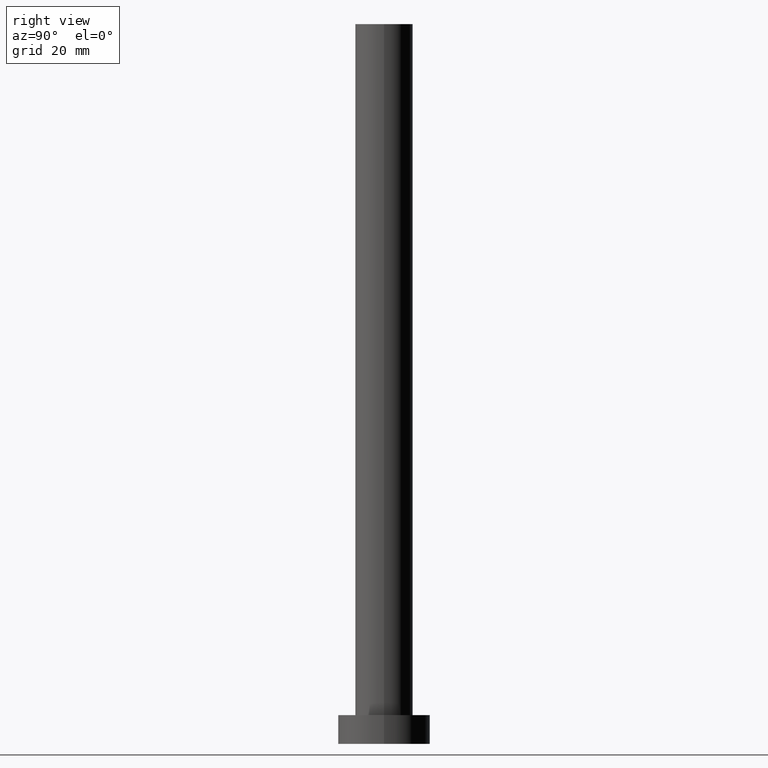
[diagram: clean part render]
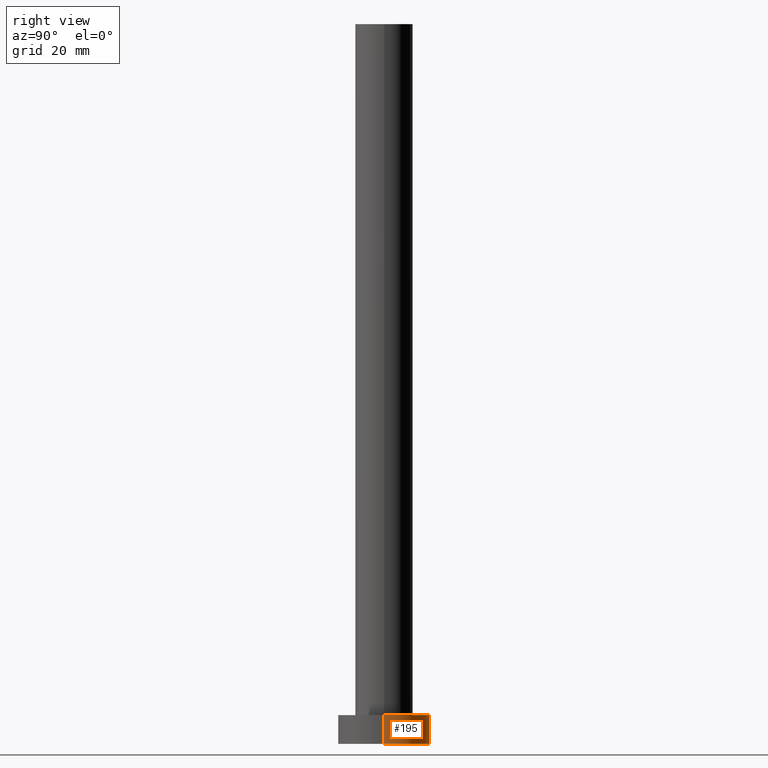
[diagram: same view with one face highlighted and labeled with its STEP entity id]
A machine part, right view. The second image highlights one B-rep face of the part: STEP entity #195.
In plain terms, the highlighted cylindrical surface (partial cylindrical patch) has radius 8 mm, axis along (-0, -0, -1).
Its self-contained STEP definition (entity closure, byte-faithful):
#18 = LINE ( 'NONE', #137, #127 ) ;
#27 = AXIS2_PLACEMENT_3D ( 'NONE', #33, #207, #131 ) ;
#32 = CARTESIAN_POINT ( 'NONE',  ( -8.000000000000000000, 0.000000000000000000, 0.000000000000000000 ) ) ;
#33 = CARTESIAN_POINT ( 'NONE',  ( 0.000000000000000000, 0.000000000000000000, 5.000000000000000000 ) ) ;
#36 = LINE ( 'NONE', #173, #95 ) ;
#41 = VERTEX_POINT ( 'NONE', #61 ) ;
#50 = DIRECTION ( 'NONE',  ( -0.000000000000000000, -0.000000000000000000, -1.000000000000000000 ) ) ;
#54 = CARTESIAN_POINT ( 'NONE',  ( 8.000000000000000000, 9.797174393178825657E-16, 5.000000000000000000 ) ) ;
#61 = CARTESIAN_POINT ( 'NONE',  ( 8.000000000000000000, 9.797174393178825657E-16, 0.000000000000000000 ) ) ;
#75 = ORIENTED_EDGE ( 'NONE', *, *, #97, .F. ) ;
#83 = ORIENTED_EDGE ( 'NONE', *, *, #145, .T. ) ;
#85 = ORIENTED_EDGE ( 'NONE', *, *, #214, .F. ) ;
#86 = DIRECTION ( 'NONE',  ( 0.000000000000000000, 0.000000000000000000, 1.000000000000000000 ) ) ;
#89 = DIRECTION ( 'NONE',  ( -0.000000000000000000, -0.000000000000000000, -1.000000000000000000 ) ) ;
#94 = CIRCLE ( 'NONE', #243, 8.000000000000000000 ) ;
#95 = VECTOR ( 'NONE', #89, 1000.000000000000000 ) ;
#97 = EDGE_CURVE ( 'NONE', #192, #224, #183, .T. ) ;
#112 = EDGE_CURVE ( 'NONE', #41, #205, #94, .T. ) ;
#113 = CYLINDRICAL_SURFACE ( 'NONE', #27, 8.000000000000000000 ) ;
#119 = AXIS2_PLACEMENT_3D ( 'NONE', #171, #86, #252 ) ;
#124 = DIRECTION ( 'NONE',  ( 1.000000000000000000, 0.000000000000000000, 0.000000000000000000 ) ) ;
#127 = VECTOR ( 'NONE', #50, 1000.000000000000000 ) ;
#131 = DIRECTION ( 'NONE',  ( -1.000000000000000000, 0.000000000000000000, 0.000000000000000000 ) ) ;
#137 = CARTESIAN_POINT ( 'NONE',  ( 8.000000000000000000, 9.797174393178825657E-16, 5.000000000000000000 ) ) ;
#144 = EDGE_LOOP ( 'NONE', ( #75, #83, #221, #85 ) ) ;
#145 = EDGE_CURVE ( 'NONE', #192, #41, #18, .T. ) ;
#171 = CARTESIAN_POINT ( 'NONE',  ( 0.000000000000000000, 0.000000000000000000, 5.000000000000000000 ) ) ;
#173 = CARTESIAN_POINT ( 'NONE',  ( -8.000000000000000000, 0.000000000000000000, 5.000000000000000000 ) ) ;
#174 = CARTESIAN_POINT ( 'NONE',  ( -8.000000000000000000, 0.000000000000000000, 5.000000000000000000 ) ) ;
#183 = CIRCLE ( 'NONE', #119, 8.000000000000000000 ) ;
#192 = VERTEX_POINT ( 'NONE', #54 ) ;
#195 = ADVANCED_FACE ( 'NONE', ( #237 ), #113, .T. ) ;
#205 = VERTEX_POINT ( 'NONE', #32 ) ;
#207 = DIRECTION ( 'NONE',  ( -0.000000000000000000, -0.000000000000000000, -1.000000000000000000 ) ) ;
#214 = EDGE_CURVE ( 'NONE', #224, #205, #36, .T. ) ;
#221 = ORIENTED_EDGE ( 'NONE', *, *, #112, .T. ) ;
#224 = VERTEX_POINT ( 'NONE', #174 ) ;
#226 = CARTESIAN_POINT ( 'NONE',  ( 0.000000000000000000, 0.000000000000000000, 0.000000000000000000 ) ) ;
#230 = DIRECTION ( 'NONE',  ( 0.000000000000000000, 0.000000000000000000, 1.000000000000000000 ) ) ;
#237 = FACE_OUTER_BOUND ( 'NONE', #144, .T. ) ;
#243 = AXIS2_PLACEMENT_3D ( 'NONE', #226, #230, #124 ) ;
#252 = DIRECTION ( 'NONE',  ( 1.000000000000000000, 0.000000000000000000, 0.000000000000000000 ) ) ;